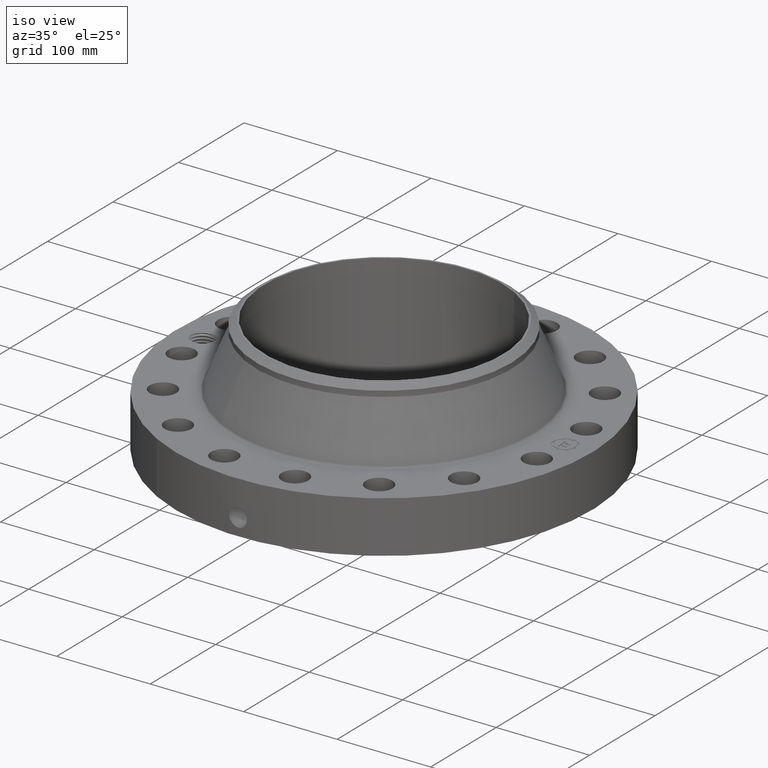
[diagram: clean part render]
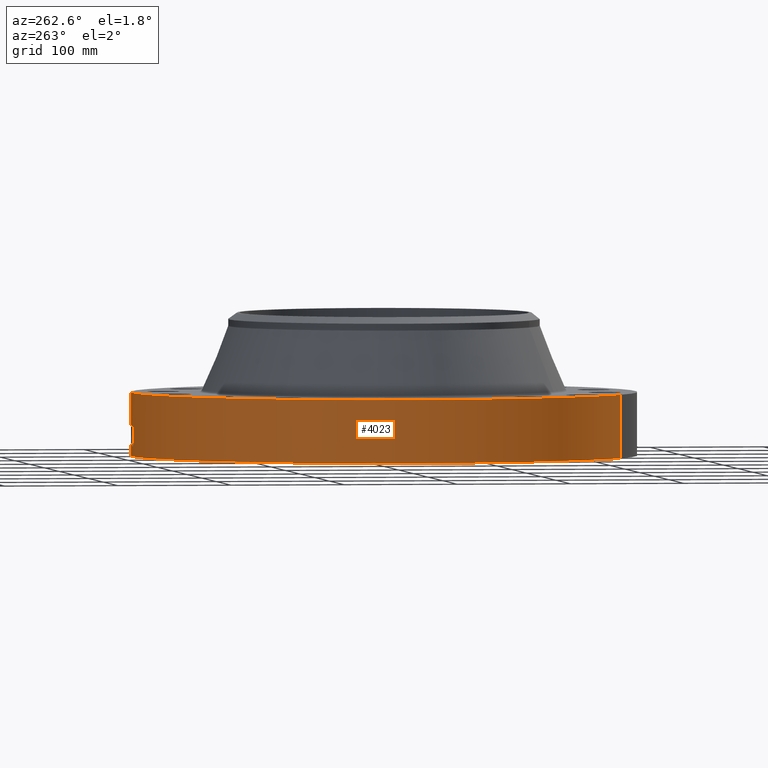
[diagram: tour spotlight — one face highlighted and labeled with its STEP entity id]
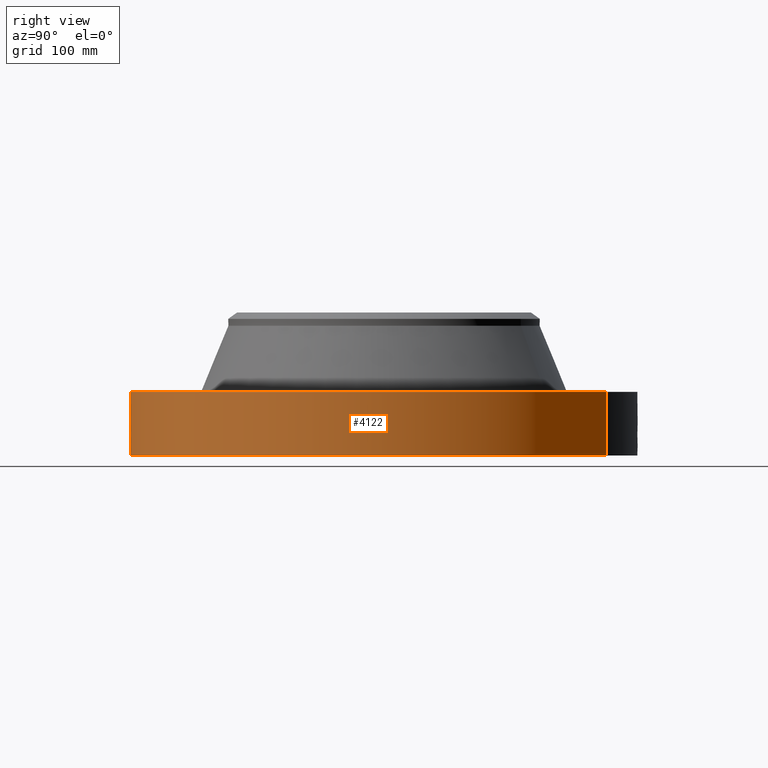
[diagram: tour spotlight — one face highlighted and labeled with its STEP entity id]
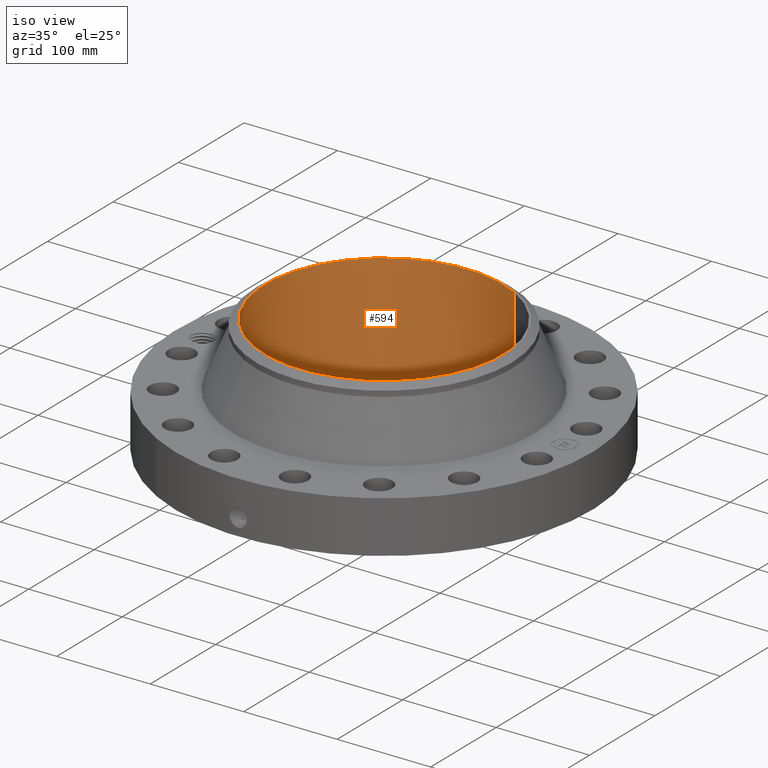
[diagram: tour spotlight — one face highlighted and labeled with its STEP entity id]
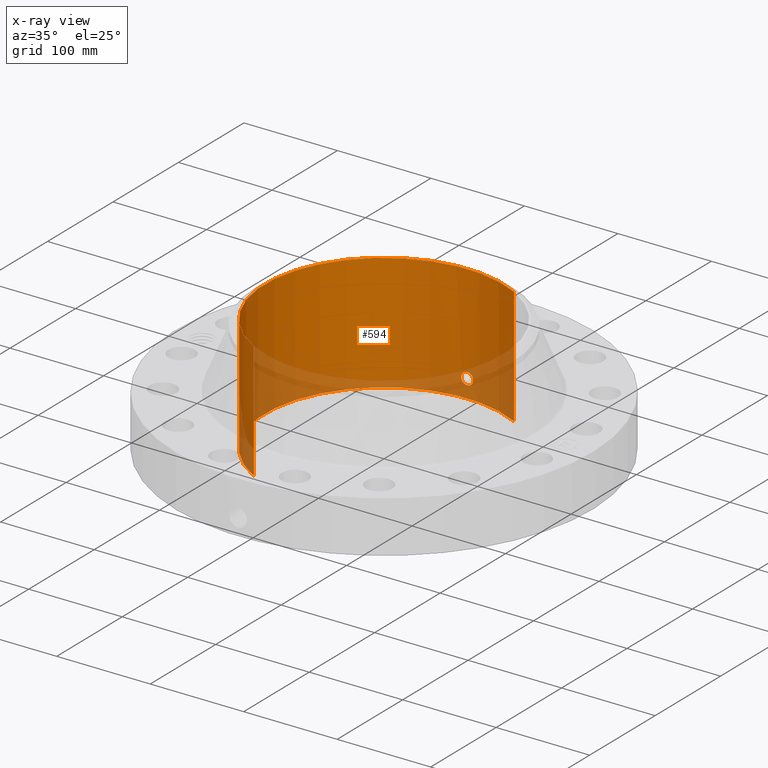
[diagram: x-ray of the same camera — body ghosted, this tour face saturated]
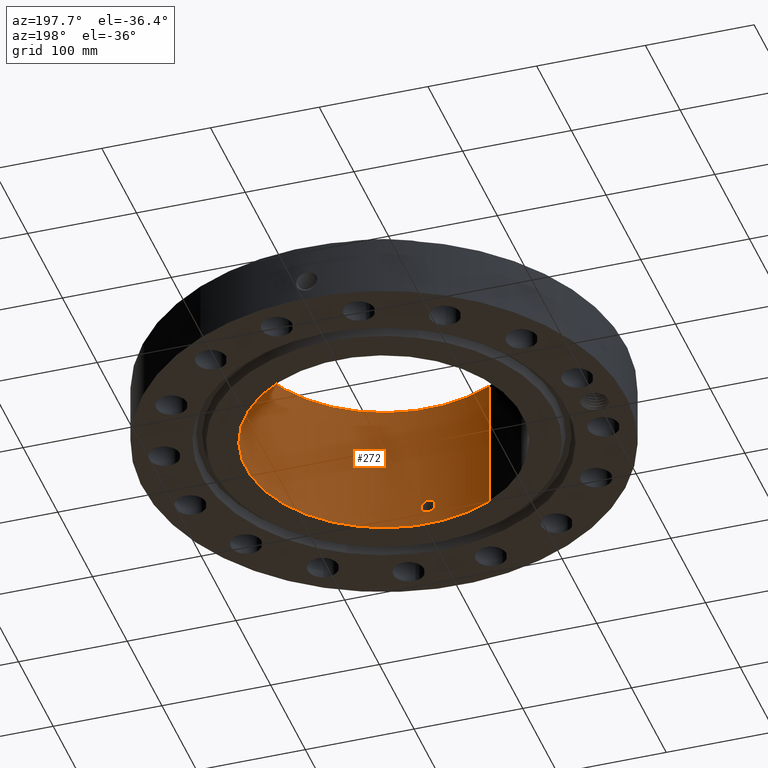
[diagram: tour spotlight — one face highlighted and labeled with its STEP entity id]
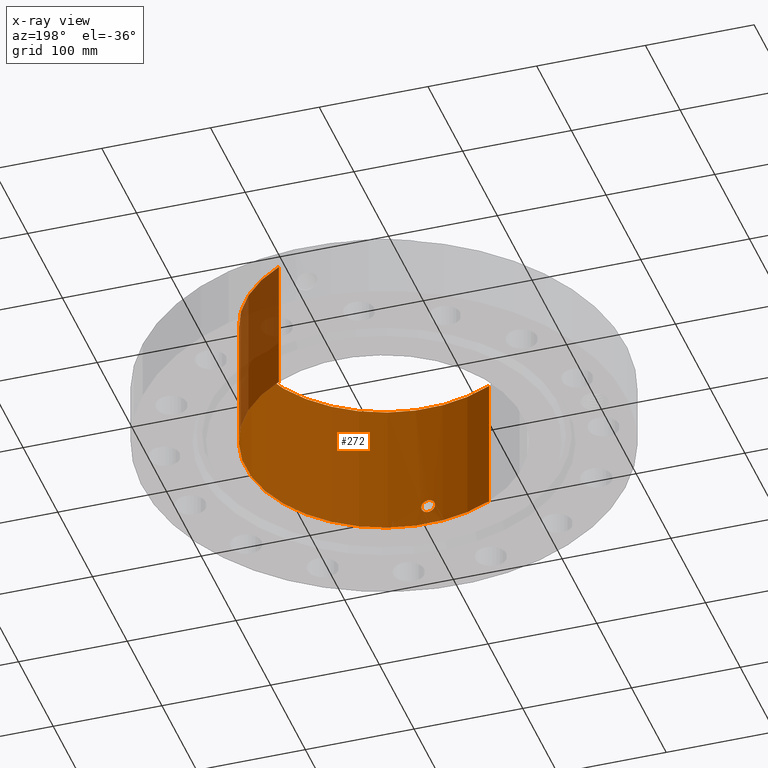
[diagram: x-ray of the same camera — body ghosted, this tour face saturated]
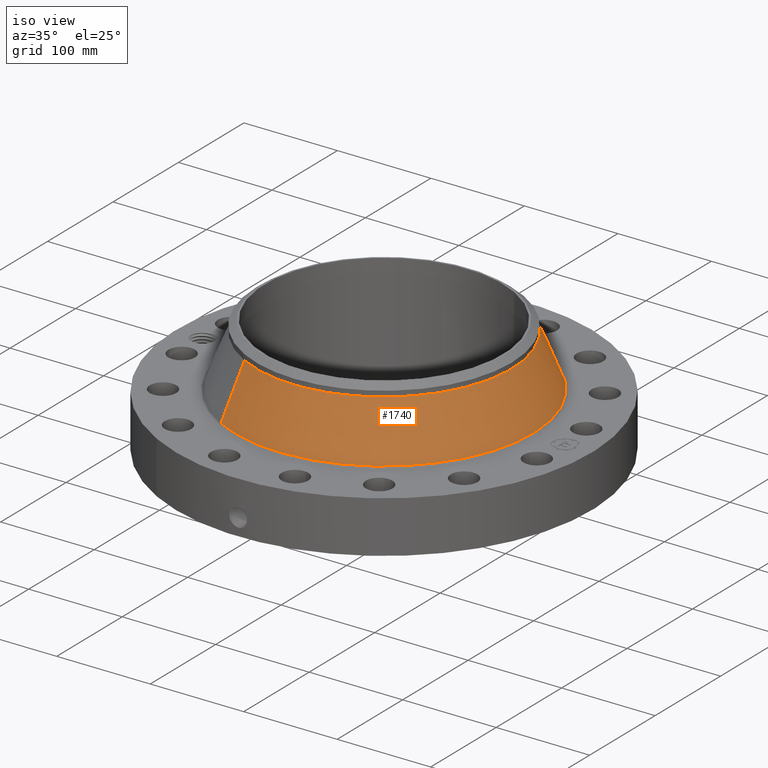
[diagram: tour spotlight — one face highlighted and labeled with its STEP entity id]
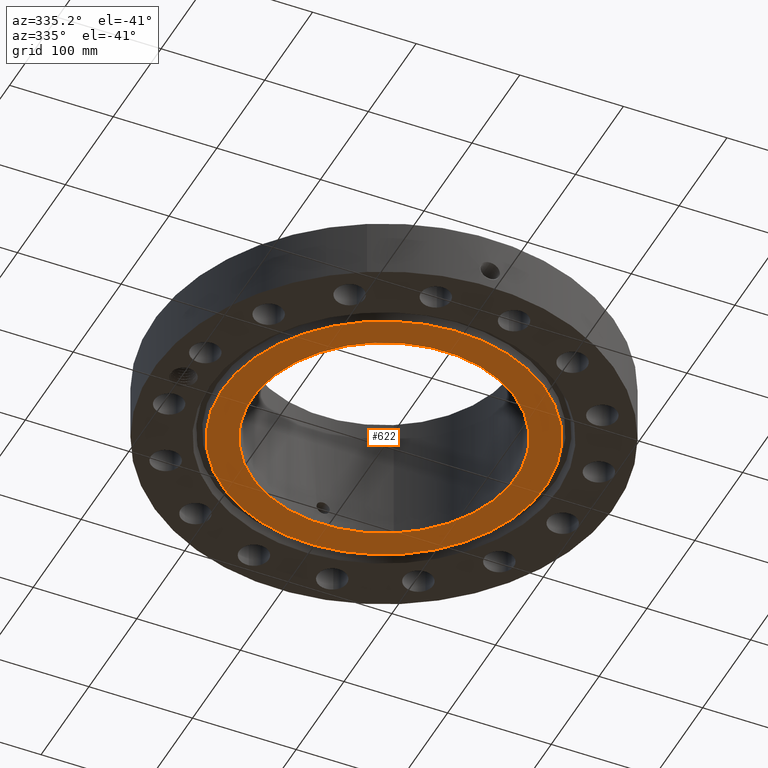
[diagram: tour spotlight — one face highlighted and labeled with its STEP entity id]
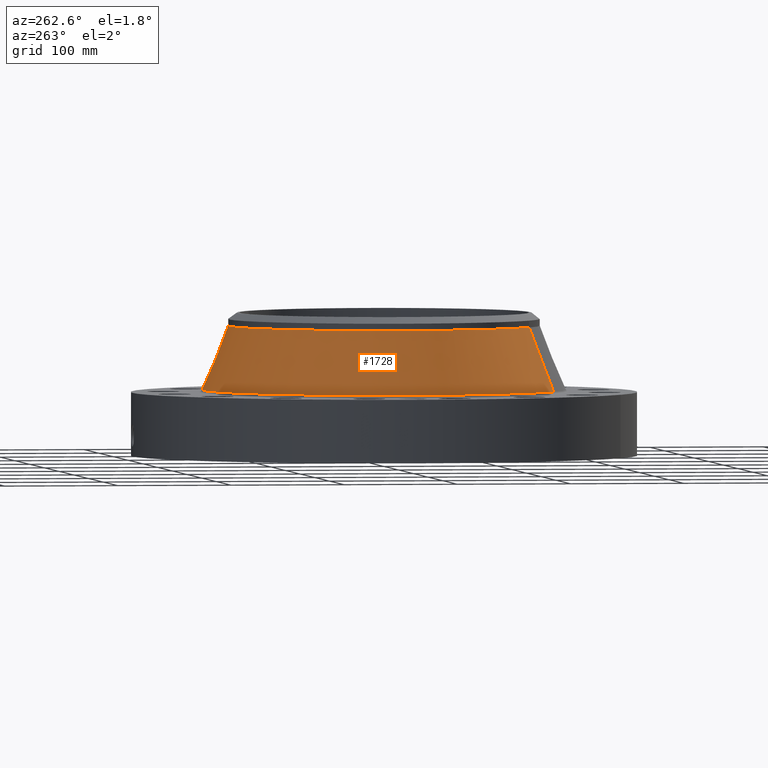
[diagram: tour spotlight — one face highlighted and labeled with its STEP entity id]
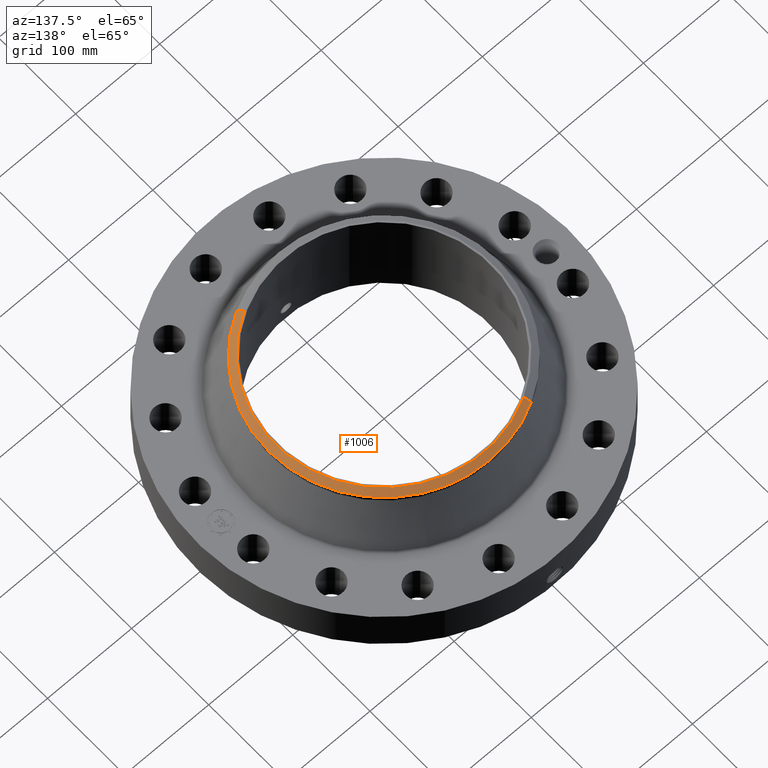
[diagram: tour spotlight — one face highlighted and labeled with its STEP entity id]
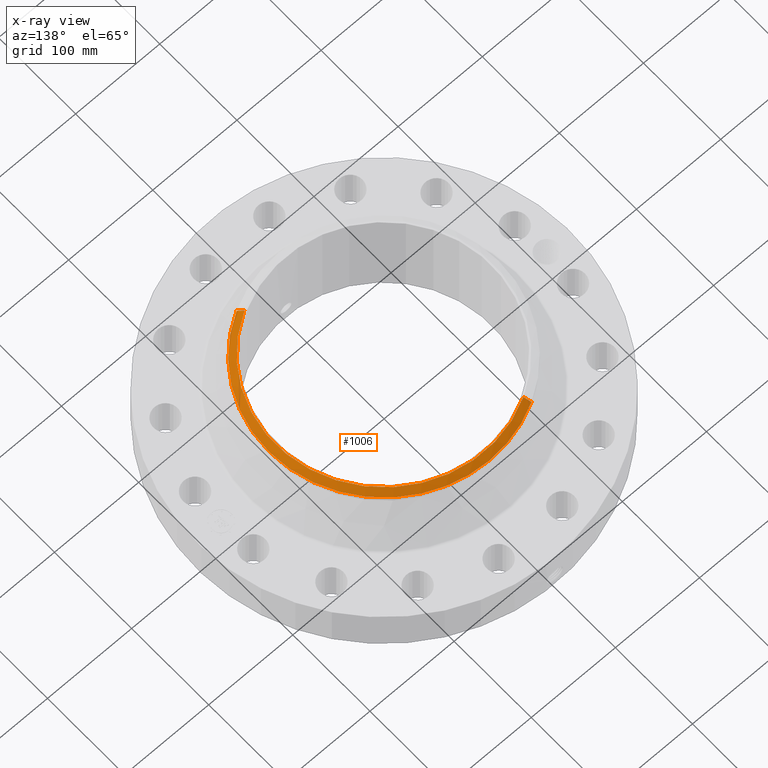
[diagram: x-ray of the same camera — body ghosted, this tour face saturated]
A machine part: a face-by-face anatomy tour. The part has 809 B-rep faces; the first image is the clean iso view, then the 8 largest visible faces are spotlighted one at a time (largest first), each with its STEP entity span.

Face 1 — auxiliary view, entity #4023. In plain terms, the highlighted cylindrical surface (partial cylindrical patch) has radius 222.25 mm, axis along (0, 0, -1).
Definition (entity closure, byte-faithful):
#2927=AXIS2_PLACEMENT_3D('Circle Axis2P3D',#2925,#2926,$) ;
#3909=AXIS2_PLACEMENT_3D('Cylinder Axis2P3D',#3906,#3907,#3908) ;
#3913=AXIS2_PLACEMENT_3D('Circle Axis2P3D',#3911,#3912,$) ;
#2920=CARTESIAN_POINT('Vertex',(4.1949734628,7.67884741657,2.19300000001)) ;
#2922=CARTESIAN_POINT('Vertex',(-4.1949734628,-7.67884741657,2.19300000001)) ;
#2925=CARTESIAN_POINT('Axis2P3D Location',(0.,0.,2.19300000001)) ;
#3906=CARTESIAN_POINT('Axis2P3D Location',(0.,0.,2.46650000001)) ;
#3911=CARTESIAN_POINT('Axis2P3D Location',(0.,0.,8.39223703654E-016)) ;
#3915=CARTESIAN_POINT('Vertex',(-4.1949734628,-7.67884741657,5.59482469102E-016)) ;
#3917=CARTESIAN_POINT('Vertex',(4.1949734628,7.67884741657,5.59482469102E-016)) ;
#3920=CARTESIAN_POINT('Line Origine',(-4.1949734628,-7.67884741657,1.0965)) ;
#3925=CARTESIAN_POINT('Line Origine',(4.1949734628,7.67884741657,1.0965)) ;
#3937=CARTESIAN_POINT('Control Point',(-0.0581082113451,8.74980705138,1.09931275918)) ;
#3938=CARTESIAN_POINT('Control Point',(-0.0391507428816,8.74993294954,1.10247040508)) ;
#3939=CARTESIAN_POINT('Control Point',(-0.019935137787,8.7499983976,1.10407954749)) ;
#3940=CARTESIAN_POINT('Control Point',(-0.000716211241971,8.74999997072,1.10411849893)) ;
#3941=CARTESIAN_POINT('Vertex',(-0.058094103343,8.74980740847,1.09931539446)) ;
#3943=CARTESIAN_POINT('Vertex',(-0.000716087015016,8.74999997073,1.10411850938)) ;
#3947=CARTESIAN_POINT('Control Point',(-0.0580939951518,8.74980714578,1.09931480802)) ;
#3948=CARTESIAN_POINT('Control Point',(-0.0974875527277,8.74954559383,1.09448302669)) ;
#3949=CARTESIAN_POINT('Control Point',(-0.136129795783,8.74901297423,1.08246986474)) ;
#3950=CARTESIAN_POINT('Control Point',(-0.171610206376,8.74831697744,1.06416185771)) ;
#3951=CARTESIAN_POINT('Vertex',(-0.171610206376,8.74831697744,1.06416185771)) ;
#3955=CARTESIAN_POINT('Control Point',(-0.0302669250486,8.74994765206,0.341133857002)) ;
#3956=CARTESIAN_POINT('Control Point',(-0.0865126194301,8.7497530927,0.34828620824)) ;
#3957=CARTESIAN_POINT('Control Point',(-0.141163769291,8.74911210118,0.365899658824)) ;
#3958=CARTESIAN_POINT('Control Point',(-0.191479456609,8.74808366168,0.393467512366)) ;
#3959=CARTESIAN_POINT('Control Point',(-0.264585195573,8.74612690955,0.452883889315)) ;
#3960=CARTESIAN_POINT('Control Point',(-0.316528462515,8.74430507499,0.529208859621)) ;
#3961=CARTESIAN_POINT('Control Point',(-0.333583700506,8.74365536444,0.56188081283)) ;
#3962=CARTESIAN_POINT('Control Point',(-0.368975035581,8.7422470228,0.65403526628)) ;
#3963=CARTESIAN_POINT('Control Point',(-0.375098719303,8.74194353704,0.752677612374)) ;
#3964=CARTESIAN_POINT('Control Point',(-0.366946086311,8.74231502189,0.814326508972)) ;
#3965=CARTESIAN_POINT('Control Point',(-0.333642995797,8.74374181876,0.912287176438)) ;
#3966=CARTESIAN_POINT('Control Point',(-0.270966480153,8.74586349126,0.992724215525)) ;
#3967=CARTESIAN_POINT('Control Point',(-0.24123137955,8.74676440465,1.02147019828)) ;
#3968=CARTESIAN_POINT('Control Point',(-0.207766159006,8.74760772896,1.04550526855)) ;
#3969=CARTESIAN_POINT('Control Point',(-0.171610206376,8.74831697744,1.06416185771)) ;
#3970=CARTESIAN_POINT('Vertex',(-0.0302669250486,8.74994765206,0.341133857002)) ;
#3974=CARTESIAN_POINT('Control Point',(-0.0302669250486,8.74994765206,0.341133857002)) ;
#3975=CARTESIAN_POINT('Control Point',(-0.0201721120829,8.74998257101,0.340866678134)) ;
#3976=CARTESIAN_POINT('Control Point',(-0.0100722667832,8.75000000318,0.340947102439)) ;
#3977=CARTESIAN_POINT('Control Point',(2.72878355316E-006,8.75000000003,0.341374667804)) ;
#3978=CARTESIAN_POINT('Vertex',(2.72878353736E-006,8.75000000003,0.341374667804)) ;
#3982=CARTESIAN_POINT('Control Point',(0.19328241765,8.74786499139,0.39620888473)) ;
#3983=CARTESIAN_POINT('Control Point',(0.149259962967,8.74883765918,0.371336697881)) ;
#3984=CARTESIAN_POINT('Control Point',(0.101168996965,8.74960564166,0.353535751557)) ;
#3985=CARTESIAN_POINT('Control Point',(0.0508246752609,8.74999998419,0.34353146512)) ;
#3986=CARTESIAN_POINT('Control Point',(2.72878350652E-006,8.75000000003,0.341374667805)) ;
#3987=CARTESIAN_POINT('Vertex',(0.19328241765,8.74786499139,0.39620888473)) ;
#3991=CARTESIAN_POINT('Control Point',(0.19328241765,8.74786499139,0.39620888473)) ;
#3992=CARTESIAN_POINT('Control Point',(0.222320013082,8.74722341123,0.41261479561)) ;
#3993=CARTESIAN_POINT('Control Point',(0.24970283303,8.74649785024,0.431904366718)) ;
#3994=CARTESIAN_POINT('Control Point',(0.275025863035,8.74572454017,0.453907776928)) ;
#3995=CARTESIAN_POINT('Control Point',(0.341959797275,8.74345929158,0.525550661267)) ;
#3996=CARTESIAN_POINT('Control Point',(0.384721449475,8.7415800014,0.615221601526)) ;
#3997=CARTESIAN_POINT('Control Point',(0.399824067785,8.74084549811,0.679596595891)) ;
#3998=CARTESIAN_POINT('Control Point',(0.40074125106,8.74084616897,0.793900913675)) ;
#3999=CARTESIAN_POINT('Control Point',(0.360682759963,8.74259093656,0.898628588562)) ;
#4000=CARTESIAN_POINT('Control Point',(0.336434934745,8.74359787649,0.940095914418)) ;
#4001=CARTESIAN_POINT('Control Point',(0.267541262061,8.74613174516,1.02398894546)) ;
#4002=CARTESIAN_POINT('Control Point',(0.174601905303,8.74851033423,1.07870829017)) ;
#4003=CARTESIAN_POINT('Control Point',(0.117427757642,8.74951483366,1.09858358612)) ;
#4004=CARTESIAN_POINT('Control Point',(0.0582716037239,8.75000017228,1.10701111984)) ;
#4005=CARTESIAN_POINT('Control Point',(-2.58579355566E-005,8.75,1.10415298432)) ;
#4006=CARTESIAN_POINT('Vertex',(-2.58579355373E-005,8.75,1.10415298432)) ;
#4010=CARTESIAN_POINT('Control Point',(-0.000716087004832,8.74999997073,1.10411850936)) ;
#4011=CARTESIAN_POINT('Control Point',(-0.000370996506643,8.74999999898,1.1041360633)) ;
#4012=CARTESIAN_POINT('Control Point',(-2.58579413376E-005,8.75,1.10415298432)) ;
#2926=DIRECTION('Axis2P3D Direction',(0.,0.,-0.0393700787402)) ;
#3907=DIRECTION('Axis2P3D Direction',(0.,0.,-0.0393700787402)) ;
#3908=DIRECTION('Axis2P3D XDirection',(0.0188750212049,0.0345504945626,0.)) ;
#3912=DIRECTION('Axis2P3D Direction',(0.,0.,-0.0393700787402)) ;
#3921=DIRECTION('Vector Direction',(0.,0.,-0.0393700787402)) ;
#3926=DIRECTION('Vector Direction',(0.,0.,-0.0393700787402)) ;
#3922=VECTOR('Line Direction',#3921,0.0393700787402) ;
#3927=VECTOR('Line Direction',#3926,0.0393700787402) ;
#3931=ORIENTED_EDGE('',*,*,#3919,.F.) ;
#3932=ORIENTED_EDGE('',*,*,#3924,.T.) ;
#3933=ORIENTED_EDGE('',*,*,#2929,.T.) ;
#3934=ORIENTED_EDGE('',*,*,#3929,.F.) ;
#4015=ORIENTED_EDGE('',*,*,#3945,.F.) ;
#4016=ORIENTED_EDGE('',*,*,#3953,.T.) ;
#4017=ORIENTED_EDGE('',*,*,#3972,.F.) ;
#4018=ORIENTED_EDGE('',*,*,#3980,.T.) ;
#4019=ORIENTED_EDGE('',*,*,#3989,.F.) ;
#4020=ORIENTED_EDGE('',*,*,#4008,.T.) ;
#4021=ORIENTED_EDGE('',*,*,#4013,.F.) ;
#4022=FACE_BOUND('',#4014,.T.) ;
#4023=ADVANCED_FACE('PartBody',(#3935,#4022),#3910,.T.) ;
#3936=B_SPLINE_CURVE_WITH_KNOTS('',3,(#3937,#3938,#3939,#3940),.UNSPECIFIED.,.F.,.U.,(4,4),(4.38919203659,6.52135752019),.UNSPECIFIED.) ;
#3946=B_SPLINE_CURVE_WITH_KNOTS('',3,(#3947,#3948,#3949,#3950),.UNSPECIFIED.,.F.,.U.,(4,4),(0.,4.4594518444),.UNSPECIFIED.) ;
#3954=B_SPLINE_CURVE_WITH_KNOTS('',5,(#3955,#3956,#3957,#3958,#3959,#3960,#3961,#3962,#3963,#3964,#3965,#3966,#3967,#3968,#3969),.UNSPECIFIED.,.F.,.U.,(6,3,3,3,6),(0.,9.85389436206,16.4310832864,27.594165797,35.1680977865),.UNSPECIFIED.) ;
#3973=B_SPLINE_CURVE_WITH_KNOTS('',3,(#3974,#3975,#3976,#3977),.UNSPECIFIED.,.F.,.U.,(4,4),(0.,1.05295486204),.UNSPECIFIED.) ;
#3981=B_SPLINE_CURVE_WITH_KNOTS('',4,(#3982,#3983,#3984,#3985,#3986),.UNSPECIFIED.,.F.,.U.,(5,5),(0.,7.08198369672),.UNSPECIFIED.) ;
#3990=B_SPLINE_CURVE_WITH_KNOTS('',5,(#3991,#3992,#3993,#3994,#3995,#3996,#3997,#3998,#3999,#4000,#4001,#4002,#4003,#4004,#4005),.UNSPECIFIED.,.F.,.U.,(6,3,3,3,6),(0.,5.83917277881,17.1007667584,25.5637802442,36.4607847134),.UNSPECIFIED.) ;
#4009=B_SPLINE_CURVE_WITH_KNOTS('',2,(#4010,#4011,#4012),.UNSPECIFIED.,.F.,.U.,(3,3),(1.04630914316,1.07211456638),.UNSPECIFIED.) ;
#2928=CIRCLE('generated circle',#2927,8.75000000003) ;
#3914=CIRCLE('generated circle',#3913,8.75000000003) ;
#3910=CYLINDRICAL_SURFACE('generated cylinder',#3909,8.75000000003) ;
#2929=EDGE_CURVE('',#2923,#2921,#2928,.T.) ;
#3919=EDGE_CURVE('',#3916,#3918,#3914,.T.) ;
#3924=EDGE_CURVE('',#3916,#2923,#3923,.F.) ;
#3929=EDGE_CURVE('',#3918,#2921,#3928,.F.) ;
#3945=EDGE_CURVE('',#3942,#3944,#3936,.T.) ;
#3953=EDGE_CURVE('',#3942,#3952,#3946,.T.) ;
#3972=EDGE_CURVE('',#3971,#3952,#3954,.T.) ;
#3980=EDGE_CURVE('',#3971,#3979,#3973,.T.) ;
#3989=EDGE_CURVE('',#3988,#3979,#3981,.T.) ;
#4008=EDGE_CURVE('',#3988,#4007,#3990,.T.) ;
#4013=EDGE_CURVE('',#3944,#4007,#4009,.T.) ;
#3930=EDGE_LOOP('',(#3931,#3932,#3933,#3934)) ;
#4014=EDGE_LOOP('',(#4015,#4016,#4017,#4018,#4019,#4020,#4021)) ;
#3935=FACE_OUTER_BOUND('',#3930,.T.) ;
#3923=LINE('Line',#3920,#3922) ;
#3928=LINE('Line',#3925,#3927) ;
#2921=VERTEX_POINT('',#2920) ;
#2923=VERTEX_POINT('',#2922) ;
#3916=VERTEX_POINT('',#3915) ;
#3918=VERTEX_POINT('',#3917) ;
#3942=VERTEX_POINT('',#3941) ;
#3944=VERTEX_POINT('',#3943) ;
#3952=VERTEX_POINT('',#3951) ;
#3971=VERTEX_POINT('',#3970) ;
#3979=VERTEX_POINT('',#3978) ;
#3988=VERTEX_POINT('',#3987) ;
#4007=VERTEX_POINT('',#4006) ;

Face 2 — right view, entity #4122. In plain terms, the highlighted cylindrical surface (partial cylindrical patch) has radius 222.25 mm, axis along (0, 0, -1).
Definition (entity closure, byte-faithful):
#2918=AXIS2_PLACEMENT_3D('Circle Axis2P3D',#2916,#2917,$) ;
#3909=AXIS2_PLACEMENT_3D('Cylinder Axis2P3D',#3906,#3907,#3908) ;
#4026=AXIS2_PLACEMENT_3D('Circle Axis2P3D',#4024,#4025,$) ;
#2916=CARTESIAN_POINT('Axis2P3D Location',(0.,0.,2.19300000001)) ;
#2920=CARTESIAN_POINT('Vertex',(4.1949734628,7.67884741657,2.19300000001)) ;
#2922=CARTESIAN_POINT('Vertex',(-4.1949734628,-7.67884741657,2.19300000001)) ;
#3906=CARTESIAN_POINT('Axis2P3D Location',(0.,0.,2.46650000001)) ;
#3915=CARTESIAN_POINT('Vertex',(-4.1949734628,-7.67884741657,5.59482469102E-016)) ;
#3917=CARTESIAN_POINT('Vertex',(4.1949734628,7.67884741657,5.59482469102E-016)) ;
#3920=CARTESIAN_POINT('Line Origine',(-4.1949734628,-7.67884741657,1.0965)) ;
#3925=CARTESIAN_POINT('Line Origine',(4.1949734628,7.67884741657,1.0965)) ;
#4024=CARTESIAN_POINT('Axis2P3D Location',(0.,0.,8.39223703654E-016)) ;
#4036=CARTESIAN_POINT('Control Point',(0.0581082113383,-8.74980705138,1.09931275918)) ;
#4037=CARTESIAN_POINT('Control Point',(0.0391507428739,-8.74993294954,1.10247040508)) ;
#4038=CARTESIAN_POINT('Control Point',(0.0199351377813,-8.7499983976,1.10407954749)) ;
#4039=CARTESIAN_POINT('Control Point',(0.000716211241799,-8.74999997072,1.10411849893)) ;
#4040=CARTESIAN_POINT('Vertex',(0.058094103343,-8.74980740847,1.09931539446)) ;
#4042=CARTESIAN_POINT('Vertex',(0.000716087015019,-8.74999997073,1.10411850938)) ;
#4046=CARTESIAN_POINT('Control Point',(0.0580939951518,-8.74980714578,1.09931480802)) ;
#4047=CARTESIAN_POINT('Control Point',(0.0974875527316,-8.74954559383,1.09448302669)) ;
#4048=CARTESIAN_POINT('Control Point',(0.13612979578,-8.74901297423,1.08246986474)) ;
#4049=CARTESIAN_POINT('Control Point',(0.171610206376,-8.74831697744,1.06416185771)) ;
#4050=CARTESIAN_POINT('Vertex',(0.171610206376,-8.74831697744,1.06416185771)) ;
#4054=CARTESIAN_POINT('Control Point',(0.0302669250486,-8.74994765206,0.341133857002)) ;
#4055=CARTESIAN_POINT('Control Point',(0.0865126193993,-8.7497530927,0.348286208236)) ;
#4056=CARTESIAN_POINT('Control Point',(0.141163769232,-8.74911210118,0.365899658805)) ;
#4057=CARTESIAN_POINT('Control Point',(0.191479456581,-8.74808366168,0.393467512356)) ;
#4058=CARTESIAN_POINT('Control Point',(0.264585195547,-8.74612690955,0.45288388929)) ;
#4059=CARTESIAN_POINT('Control Point',(0.316528462496,-8.74430507499,0.529208859582)) ;
#4060=CARTESIAN_POINT('Control Point',(0.333583700452,-8.74365536444,0.561880812708)) ;
#4061=CARTESIAN_POINT('Control Point',(0.368975035558,-8.7422470228,0.654035266158)) ;
#4062=CARTESIAN_POINT('Control Point',(0.375098719307,-8.74194353704,0.75267761226)) ;
#4063=CARTESIAN_POINT('Control Point',(0.36694608632,-8.74231502189,0.814326508907)) ;
#4064=CARTESIAN_POINT('Control Point',(0.333642995823,-8.74374181876,0.912287176393)) ;
#4065=CARTESIAN_POINT('Control Point',(0.270966480181,-8.74586349126,0.9927242155)) ;
#4066=CARTESIAN_POINT('Control Point',(0.241231379592,-8.74676440465,1.02147019826)) ;
#4067=CARTESIAN_POINT('Control Point',(0.207766159028,-8.74760772896,1.04550526854)) ;
#4068=CARTESIAN_POINT('Control Point',(0.171610206376,-8.74831697744,1.06416185771)) ;
#4069=CARTESIAN_POINT('Vertex',(0.0302669250486,-8.74994765206,0.341133857002)) ;
#4073=CARTESIAN_POINT('Control Point',(0.0302669250486,-8.74994765206,0.341133857002)) ;
#4074=CARTESIAN_POINT('Control Point',(0.0201721120829,-8.74998257101,0.340866678134)) ;
#4075=CARTESIAN_POINT('Control Point',(0.0100722667832,-8.75000000318,0.340947102439)) ;
#4076=CARTESIAN_POINT('Control Point',(-2.72878353091E-006,-8.75000000003,0.341374667804)) ;
#4077=CARTESIAN_POINT('Vertex',(-2.72878353845E-006,-8.75000000003,0.341374667804)) ;
#4081=CARTESIAN_POINT('Control Point',(-0.19328241765,-8.74786499139,0.39620888473)) ;
#4082=CARTESIAN_POINT('Control Point',(-0.149259962972,-8.74883765918,0.371336697884)) ;
#4083=CARTESIAN_POINT('Control Point',(-0.101168996964,-8.74960564166,0.353535751558)) ;
#4084=CARTESIAN_POINT('Control Point',(-0.050824675255,-8.74999998419,0.34353146512)) ;
#4085=CARTESIAN_POINT('Control Point',(-2.72878353091E-006,-8.75000000003,0.341374667805)) ;
#4086=CARTESIAN_POINT('Vertex',(-0.19328241765,-8.74786499139,0.39620888473)) ;
#4090=CARTESIAN_POINT('Control Point',(-0.19328241765,-8.74786499139,0.39620888473)) ;
#4091=CARTESIAN_POINT('Control Point',(-0.222320013064,-8.74722341123,0.4126147956)) ;
#4092=CARTESIAN_POINT('Control Point',(-0.249702832997,-8.74649785024,0.431904366694)) ;
#4093=CARTESIAN_POINT('Control Point',(-0.275025862896,-8.74572454017,0.4539077768)) ;
#4094=CARTESIAN_POINT('Control Point',(-0.341959797191,-8.74345929159,0.525550661125)) ;
#4095=CARTESIAN_POINT('Control Point',(-0.384721449446,-8.7415800014,0.615221601393)) ;
#4096=CARTESIAN_POINT('Control Point',(-0.399824067751,-8.74084549811,0.679596595568)) ;
#4097=CARTESIAN_POINT('Control Point',(-0.400741251115,-8.74084616896,0.793900913398)) ;
#4098=CARTESIAN_POINT('Control Point',(-0.360682760066,-8.74259093656,0.898628588351)) ;
#4099=CARTESIAN_POINT('Control Point',(-0.336434934861,-8.74359787649,0.940095914243)) ;
#4100=CARTESIAN_POINT('Control Point',(-0.267541262195,-8.74613174515,1.02398894535)) ;
#4101=CARTESIAN_POINT('Control Point',(-0.174601905421,-8.74851033423,1.07870829013)) ;
#4102=CARTESIAN_POINT('Control Point',(-0.11742775774,-8.74951483366,1.09858358611)) ;
#4103=CARTESIAN_POINT('Control Point',(-0.0582716037716,-8.75000017228,1.10701111984)) ;
#4104=CARTESIAN_POINT('Control Point',(2.58579355322E-005,-8.75,1.10415298432)) ;
#4105=CARTESIAN_POINT('Vertex',(2.58579355363E-005,-8.75,1.10415298432)) ;
#4109=CARTESIAN_POINT('Control Point',(0.000716087004843,-8.74999997073,1.10411850936)) ;
#4110=CARTESIAN_POINT('Control Point',(0.000370996506661,-8.74999999898,1.1041360633)) ;
#4111=CARTESIAN_POINT('Control Point',(2.58579413629E-005,-8.75,1.10415298432)) ;
#2917=DIRECTION('Axis2P3D Direction',(0.,0.,-0.0393700787402)) ;
#3907=DIRECTION('Axis2P3D Direction',(0.,0.,-0.0393700787402)) ;
#3908=DIRECTION('Axis2P3D XDirection',(0.0188750212049,0.0345504945626,0.)) ;
#3921=DIRECTION('Vector Direction',(0.,0.,-0.0393700787402)) ;
#3926=DIRECTION('Vector Direction',(0.,0.,-0.0393700787402)) ;
#4025=DIRECTION('Axis2P3D Direction',(0.,0.,-0.0393700787402)) ;
#3922=VECTOR('Line Direction',#3921,0.0393700787402) ;
#3927=VECTOR('Line Direction',#3926,0.0393700787402) ;
#4030=ORIENTED_EDGE('',*,*,#4028,.F.) ;
#4031=ORIENTED_EDGE('',*,*,#3929,.T.) ;
#4032=ORIENTED_EDGE('',*,*,#2924,.T.) ;
#4033=ORIENTED_EDGE('',*,*,#3924,.F.) ;
#4114=ORIENTED_EDGE('',*,*,#4044,.F.) ;
#4115=ORIENTED_EDGE('',*,*,#4052,.T.) ;
#4116=ORIENTED_EDGE('',*,*,#4071,.F.) ;
#4117=ORIENTED_EDGE('',*,*,#4079,.T.) ;
#4118=ORIENTED_EDGE('',*,*,#4088,.F.) ;
#4119=ORIENTED_EDGE('',*,*,#4107,.T.) ;
#4120=ORIENTED_EDGE('',*,*,#4112,.F.) ;
#4121=FACE_BOUND('',#4113,.T.) ;
#4122=ADVANCED_FACE('PartBody',(#4034,#4121),#3910,.T.) ;
#4035=B_SPLINE_CURVE_WITH_KNOTS('',3,(#4036,#4037,#4038,#4039),.UNSPECIFIED.,.F.,.U.,(4,4),(4.38919203569,6.52135751858),.UNSPECIFIED.) ;
#4045=B_SPLINE_CURVE_WITH_KNOTS('',3,(#4046,#4047,#4048,#4049),.UNSPECIFIED.,.F.,.U.,(4,4),(0.,4.45945184484),.UNSPECIFIED.) ;
#4053=B_SPLINE_CURVE_WITH_KNOTS('',5,(#4054,#4055,#4056,#4057,#4058,#4059,#4060,#4061,#4062,#4063,#4064,#4065,#4066,#4067,#4068),.UNSPECIFIED.,.F.,.U.,(6,3,3,3,6),(0.,9.85389435666,16.431083285,27.5941657932,35.1680977875),.UNSPECIFIED.) ;
#4072=B_SPLINE_CURVE_WITH_KNOTS('',3,(#4073,#4074,#4075,#4076),.UNSPECIFIED.,.F.,.U.,(4,4),(0.,1.05295486204),.UNSPECIFIED.) ;
#4080=B_SPLINE_CURVE_WITH_KNOTS('',4,(#4081,#4082,#4083,#4084,#4085),.UNSPECIFIED.,.F.,.U.,(5,5),(0.,7.08198369591),.UNSPECIFIED.) ;
#4089=B_SPLINE_CURVE_WITH_KNOTS('',5,(#4090,#4091,#4092,#4093,#4094,#4095,#4096,#4097,#4098,#4099,#4100,#4101,#4102,#4103,#4104),.UNSPECIFIED.,.F.,.U.,(6,3,3,3,6),(0.,5.8391727752,17.1007667634,25.5637802479,36.4607847259),.UNSPECIFIED.) ;
#4108=B_SPLINE_CURVE_WITH_KNOTS('',2,(#4109,#4110,#4111),.UNSPECIFIED.,.F.,.U.,(3,3),(1.04630914316,1.07211456638),.UNSPECIFIED.) ;
#2919=CIRCLE('generated circle',#2918,8.75000000003) ;
#4027=CIRCLE('generated circle',#4026,8.75000000003) ;
#3910=CYLINDRICAL_SURFACE('generated cylinder',#3909,8.75000000003) ;
#2924=EDGE_CURVE('',#2921,#2923,#2919,.T.) ;
#3924=EDGE_CURVE('',#3916,#2923,#3923,.F.) ;
#3929=EDGE_CURVE('',#3918,#2921,#3928,.F.) ;
#4028=EDGE_CURVE('',#3918,#3916,#4027,.T.) ;
#4044=EDGE_CURVE('',#4041,#4043,#4035,.T.) ;
#4052=EDGE_CURVE('',#4041,#4051,#4045,.T.) ;
#4071=EDGE_CURVE('',#4070,#4051,#4053,.T.) ;
#4079=EDGE_CURVE('',#4070,#4078,#4072,.T.) ;
#4088=EDGE_CURVE('',#4087,#4078,#4080,.T.) ;
#4107=EDGE_CURVE('',#4087,#4106,#4089,.T.) ;
#4112=EDGE_CURVE('',#4043,#4106,#4108,.T.) ;
#4029=EDGE_LOOP('',(#4030,#4031,#4032,#4033)) ;
#4113=EDGE_LOOP('',(#4114,#4115,#4116,#4117,#4118,#4119,#4120)) ;
#4034=FACE_OUTER_BOUND('',#4029,.T.) ;
#3923=LINE('Line',#3920,#3922) ;
#3928=LINE('Line',#3925,#3927) ;
#2921=VERTEX_POINT('',#2920) ;
#2923=VERTEX_POINT('',#2922) ;
#3916=VERTEX_POINT('',#3915) ;
#3918=VERTEX_POINT('',#3917) ;
#4041=VERTEX_POINT('',#4040) ;
#4043=VERTEX_POINT('',#4042) ;
#4051=VERTEX_POINT('',#4050) ;
#4070=VERTEX_POINT('',#4069) ;
#4078=VERTEX_POINT('',#4077) ;
#4087=VERTEX_POINT('',#4086) ;
#4106=VERTEX_POINT('',#4105) ;

Face 3 — iso view, entity #594. An x-ray twin of the same camera follows (body ghosted, this face saturated) — the face is partly hidden behind the body. In plain terms, the highlighted cylindrical surface (partial cylindrical patch) has radius 127.254 mm, axis along (0, 0, -1).
Definition (entity closure, byte-faithful):
#232=AXIS2_PLACEMENT_3D('Cylinder Axis2P3D',#229,#230,#231) ;
#533=AXIS2_PLACEMENT_3D('Circle Axis2P3D',#531,#532,$) ;
#543=AXIS2_PLACEMENT_3D('Circle Axis2P3D',#541,#542,$) ;
#229=CARTESIAN_POINT('Axis2P3D Location',(0.,0.,2.46650000001)) ;
#238=CARTESIAN_POINT('Vertex',(2.40192194842,4.39668863509,4.93300000002)) ;
#240=CARTESIAN_POINT('Vertex',(-2.40192194842,-4.39668863509,4.93300000002)) ;
#243=CARTESIAN_POINT('Line Origine',(2.40192194842,4.39668863509,2.46650000001)) ;
#247=CARTESIAN_POINT('Vertex',(2.40192194842,4.39668863509,-1.17491318512E-014)) ;
#254=CARTESIAN_POINT('Vertex',(-2.40192194842,-4.39668863509,-1.17491318512E-014)) ;
#257=CARTESIAN_POINT('Line Origine',(-2.40192194842,-4.39668863509,2.46650000001)) ;
#531=CARTESIAN_POINT('Axis2P3D Location',(0.,0.,4.93300000002)) ;
#541=CARTESIAN_POINT('Axis2P3D Location',(0.,0.,-1.28680967894E-014)) ;
#553=CARTESIAN_POINT('Control Point',(0.219395640473,5.0051938577,0.869856384655)) ;
#554=CARTESIAN_POINT('Control Point',(0.206921726744,5.00574063418,0.892689730579)) ;
#555=CARTESIAN_POINT('Control Point',(0.191478298875,5.00637864122,0.913898617409)) ;
#556=CARTESIAN_POINT('Control Point',(0.17334531814,5.00705858161,0.932970125788)) ;
#557=CARTESIAN_POINT('Control Point',(0.112137495216,5.00902515689,0.982448443439)) ;
#558=CARTESIAN_POINT('Control Point',(0.0349834941272,5.0103028337,1.00597315605)) ;
#559=CARTESIAN_POINT('Control Point',(-0.0195586093843,5.01039831415,1.00761228098)) ;
#560=CARTESIAN_POINT('Control Point',(-0.124143463831,5.00899203585,0.982470816197)) ;
#561=CARTESIAN_POINT('Control Point',(-0.203188052532,5.00608110487,0.90956136154)) ;
#562=CARTESIAN_POINT('Control Point',(-0.232165482182,5.00464790126,0.863347559974)) ;
#563=CARTESIAN_POINT('Control Point',(-0.255832984993,5.00346793306,0.785190939743)) ;
#564=CARTESIAN_POINT('Control Point',(-0.248296103091,5.00384337312,0.705801483622)) ;
#565=CARTESIAN_POINT('Control Point',(-0.242062009688,5.00415848896,0.67921764512)) ;
#566=CARTESIAN_POINT('Control Point',(-0.232323664129,5.00462717595,0.653808203919)) ;
#567=CARTESIAN_POINT('Control Point',(-0.219395640473,5.0051938577,0.630143615351)) ;
#568=CARTESIAN_POINT('Vertex',(0.219395640473,5.0051938577,0.869856384655)) ;
#570=CARTESIAN_POINT('Vertex',(-0.219395640473,5.0051938577,0.630143615351)) ;
#574=CARTESIAN_POINT('Control Point',(-0.219395640473,5.0051938577,0.630143615351)) ;
#575=CARTESIAN_POINT('Control Point',(-0.206921726744,5.00574063418,0.607310269427)) ;
#576=CARTESIAN_POINT('Control Point',(-0.191478298875,5.00637864122,0.586101382597)) ;
#577=CARTESIAN_POINT('Control Point',(-0.173345318142,5.00705858161,0.56702987422)) ;
#578=CARTESIAN_POINT('Control Point',(-0.112137495222,5.00902515689,0.51755155657)) ;
#579=CARTESIAN_POINT('Control Point',(-0.0349834941378,5.0103028337,0.494026843957)) ;
#580=CARTESIAN_POINT('Control Point',(0.0195586093904,5.01039831415,0.492387719027)) ;
#581=CARTESIAN_POINT('Control Point',(0.124143463845,5.00899203585,0.517529183814)) ;
#582=CARTESIAN_POINT('Control Point',(0.203188052551,5.00608110487,0.590438638482)) ;
#583=CARTESIAN_POINT('Control Point',(0.232165482172,5.00464790126,0.636652440003)) ;
#584=CARTESIAN_POINT('Control Point',(0.255832984994,5.00346793306,0.714809060247)) ;
#585=CARTESIAN_POINT('Control Point',(0.248296103091,5.00384337312,0.794198516382)) ;
#586=CARTESIAN_POINT('Control Point',(0.242062009688,5.00415848896,0.820782354886)) ;
#587=CARTESIAN_POINT('Control Point',(0.232323664129,5.00462717595,0.846191796087)) ;
#588=CARTESIAN_POINT('Control Point',(0.219395640473,5.0051938577,0.869856384655)) ;
#230=DIRECTION('Axis2P3D Direction',(0.,0.,-0.0393700787402)) ;
#231=DIRECTION('Axis2P3D XDirection',(-0.0188750212049,-0.0345504945626,0.)) ;
#244=DIRECTION('Vector Direction',(0.,0.,-0.0393700787402)) ;
#258=DIRECTION('Vector Direction',(0.,0.,-0.0393700787402)) ;
#532=DIRECTION('Axis2P3D Direction',(0.,0.,-0.0393700787402)) ;
#542=DIRECTION('Axis2P3D Direction',(0.,0.,-0.0393700787402)) ;
#245=VECTOR('Line Direction',#244,0.0393700787402) ;
#259=VECTOR('Line Direction',#258,0.0393700787402) ;
#547=ORIENTED_EDGE('',*,*,#535,.F.) ;
#548=ORIENTED_EDGE('',*,*,#261,.T.) ;
#549=ORIENTED_EDGE('',*,*,#545,.T.) ;
#550=ORIENTED_EDGE('',*,*,#249,.F.) ;
#591=ORIENTED_EDGE('',*,*,#572,.F.) ;
#592=ORIENTED_EDGE('',*,*,#589,.F.) ;
#593=FACE_BOUND('',#590,.T.) ;
#594=ADVANCED_FACE('PartBody',(#551,#593),#233,.F.) ;
#552=B_SPLINE_CURVE_WITH_KNOTS('',5,(#553,#554,#555,#556,#557,#558,#559,#560,#561,#562,#563,#564,#565,#566,#567),.UNSPECIFIED.,.F.,.U.,(6,3,3,3,6),(0.,4.67408027813,14.0220982243,23.3720849081,28.2163239907),.UNSPECIFIED.) ;
#573=B_SPLINE_CURVE_WITH_KNOTS('',5,(#574,#575,#576,#577,#578,#579,#580,#581,#582,#583,#584,#585,#586,#587,#588),.UNSPECIFIED.,.F.,.U.,(6,3,3,3,6),(0.,4.67408027814,14.0220982236,23.3720849098,28.2163239925),.UNSPECIFIED.) ;
#534=CIRCLE('generated circle',#533,5.01000000002) ;
#544=CIRCLE('generated circle',#543,5.01000000002) ;
#233=CYLINDRICAL_SURFACE('generated cylinder',#232,5.01000000002) ;
#249=EDGE_CURVE('',#239,#248,#246,.T.) ;
#261=EDGE_CURVE('',#241,#255,#260,.T.) ;
#535=EDGE_CURVE('',#241,#239,#534,.T.) ;
#545=EDGE_CURVE('',#255,#248,#544,.T.) ;
#572=EDGE_CURVE('',#569,#571,#552,.T.) ;
#589=EDGE_CURVE('',#571,#569,#573,.T.) ;
#546=EDGE_LOOP('',(#547,#548,#549,#550)) ;
#590=EDGE_LOOP('',(#591,#592)) ;
#551=FACE_OUTER_BOUND('',#546,.T.) ;
#246=LINE('Line',#243,#245) ;
#260=LINE('Line',#257,#259) ;
#239=VERTEX_POINT('',#238) ;
#241=VERTEX_POINT('',#240) ;
#248=VERTEX_POINT('',#247) ;
#255=VERTEX_POINT('',#254) ;
#569=VERTEX_POINT('',#568) ;
#571=VERTEX_POINT('',#570) ;

Face 4 — auxiliary view, entity #272. An x-ray twin of the same camera follows (body ghosted, this face saturated) — the face is partly hidden behind the body. In plain terms, the highlighted cylindrical surface (partial cylindrical patch) has radius 127.254 mm, axis along (0, 0, -1).
Definition (entity closure, byte-faithful):
#232=AXIS2_PLACEMENT_3D('Cylinder Axis2P3D',#229,#230,#231) ;
#236=AXIS2_PLACEMENT_3D('Circle Axis2P3D',#234,#235,$) ;
#252=AXIS2_PLACEMENT_3D('Circle Axis2P3D',#250,#251,$) ;
#81=CARTESIAN_POINT('Control Point',(0.219395640473,-5.0051938577,0.630143615351)) ;
#82=CARTESIAN_POINT('Control Point',(0.206921726754,-5.00574063418,0.607310269446)) ;
#83=CARTESIAN_POINT('Control Point',(0.191478289818,-5.00637864042,0.586101366106)) ;
#84=CARTESIAN_POINT('Control Point',(0.173345302068,-5.00705858077,0.567029864322)) ;
#85=CARTESIAN_POINT('Control Point',(0.11213752728,-5.00902515857,0.517551576304)) ;
#86=CARTESIAN_POINT('Control Point',(0.0349834299765,-5.01030283035,0.494026804474)) ;
#87=CARTESIAN_POINT('Control Point',(-0.019558675775,-5.01039831727,0.492387754601)) ;
#88=CARTESIAN_POINT('Control Point',(-0.124143397445,-5.00899203273,0.517529148232)) ;
#89=CARTESIAN_POINT('Control Point',(-0.203188118965,-5.006081108,0.590438674072)) ;
#90=CARTESIAN_POINT('Control Point',(-0.232165485174,-5.00464790156,0.636652515391)) ;
#91=CARTESIAN_POINT('Control Point',(-0.255832983442,-5.0034679329,0.714809021201)) ;
#92=CARTESIAN_POINT('Control Point',(-0.248296103895,-5.0038433732,0.794198536641)) ;
#93=CARTESIAN_POINT('Control Point',(-0.24206201945,-5.00415848981,0.820782337115)) ;
#94=CARTESIAN_POINT('Control Point',(-0.232323664134,-5.00462717595,0.846191796077)) ;
#95=CARTESIAN_POINT('Control Point',(-0.219395640473,-5.0051938577,0.869856384655)) ;
#96=CARTESIAN_POINT('Vertex',(0.219395640473,-5.0051938577,0.630143615351)) ;
#98=CARTESIAN_POINT('Vertex',(-0.219395640473,-5.0051938577,0.869856384655)) ;
#206=CARTESIAN_POINT('Control Point',(-0.219395640473,-5.0051938577,0.869856384655)) ;
#207=CARTESIAN_POINT('Control Point',(-0.206921726754,-5.00574063418,0.89268973056)) ;
#208=CARTESIAN_POINT('Control Point',(-0.191478289818,-5.00637864042,0.913898633899)) ;
#209=CARTESIAN_POINT('Control Point',(-0.173345302068,-5.00705858077,0.932970135684)) ;
#210=CARTESIAN_POINT('Control Point',(-0.11213752728,-5.00902515857,0.982448423701)) ;
#211=CARTESIAN_POINT('Control Point',(-0.0349834299777,-5.01030283035,1.00597319553)) ;
#212=CARTESIAN_POINT('Control Point',(0.0195586757743,-5.01039831727,1.00761224541)) ;
#213=CARTESIAN_POINT('Control Point',(0.124143397444,-5.00899203273,0.982470851775)) ;
#214=CARTESIAN_POINT('Control Point',(0.203188118964,-5.006081108,0.909561325935)) ;
#215=CARTESIAN_POINT('Control Point',(0.232165485174,-5.00464790156,0.863347484615)) ;
#216=CARTESIAN_POINT('Control Point',(0.255832983439,-5.0034679329,0.785190978817)) ;
#217=CARTESIAN_POINT('Control Point',(0.248296103897,-5.0038433732,0.705801463388)) ;
#218=CARTESIAN_POINT('Control Point',(0.242062019442,-5.00415848981,0.67921766287)) ;
#219=CARTESIAN_POINT('Control Point',(0.232323664129,-5.00462717595,0.653808203919)) ;
#220=CARTESIAN_POINT('Control Point',(0.219395640473,-5.0051938577,0.630143615351)) ;
#229=CARTESIAN_POINT('Axis2P3D Location',(0.,0.,2.46650000001)) ;
#234=CARTESIAN_POINT('Axis2P3D Location',(0.,0.,4.93300000002)) ;
#238=CARTESIAN_POINT('Vertex',(2.40192194842,4.39668863509,4.93300000002)) ;
#240=CARTESIAN_POINT('Vertex',(-2.40192194842,-4.39668863509,4.93300000002)) ;
#243=CARTESIAN_POINT('Line Origine',(2.40192194842,4.39668863509,2.46650000001)) ;
#247=CARTESIAN_POINT('Vertex',(2.40192194842,4.39668863509,-1.17491318512E-014)) ;
#250=CARTESIAN_POINT('Axis2P3D Location',(0.,0.,-1.28680967894E-014)) ;
#254=CARTESIAN_POINT('Vertex',(-2.40192194842,-4.39668863509,-1.17491318512E-014)) ;
#257=CARTESIAN_POINT('Line Origine',(-2.40192194842,-4.39668863509,2.46650000001)) ;
#230=DIRECTION('Axis2P3D Direction',(0.,0.,-0.0393700787402)) ;
#231=DIRECTION('Axis2P3D XDirection',(-0.0188750212049,-0.0345504945626,0.)) ;
#235=DIRECTION('Axis2P3D Direction',(0.,0.,-0.0393700787402)) ;
#244=DIRECTION('Vector Direction',(0.,0.,-0.0393700787402)) ;
#251=DIRECTION('Axis2P3D Direction',(0.,0.,-0.0393700787402)) ;
#258=DIRECTION('Vector Direction',(0.,0.,-0.0393700787402)) ;
#245=VECTOR('Line Direction',#244,0.0393700787402) ;
#259=VECTOR('Line Direction',#258,0.0393700787402) ;
#263=ORIENTED_EDGE('',*,*,#242,.F.) ;
#264=ORIENTED_EDGE('',*,*,#249,.T.) ;
#265=ORIENTED_EDGE('',*,*,#256,.T.) ;
#266=ORIENTED_EDGE('',*,*,#261,.F.) ;
#269=ORIENTED_EDGE('',*,*,#100,.F.) ;
#270=ORIENTED_EDGE('',*,*,#221,.F.) ;
#271=FACE_BOUND('',#268,.T.) ;
#272=ADVANCED_FACE('PartBody',(#267,#271),#233,.F.) ;
#80=B_SPLINE_CURVE_WITH_KNOTS('',5,(#81,#82,#83,#84,#85,#86,#87,#88,#89,#90,#91,#92,#93,#94,#95),.UNSPECIFIED.,.F.,.U.,(6,3,3,3,6),(0.,4.67408027439,14.02209822,23.3720849062,28.2163239908),.UNSPECIFIED.) ;
#205=B_SPLINE_CURVE_WITH_KNOTS('',5,(#206,#207,#208,#209,#210,#211,#212,#213,#214,#215,#216,#217,#218,#219,#220),.UNSPECIFIED.,.F.,.U.,(6,3,3,3,6),(0.,4.67408027433,14.0220982199,23.372084906,28.2163239887),.UNSPECIFIED.) ;
#237=CIRCLE('generated circle',#236,5.01000000002) ;
#253=CIRCLE('generated circle',#252,5.01000000002) ;
#233=CYLINDRICAL_SURFACE('generated cylinder',#232,5.01000000002) ;
#100=EDGE_CURVE('',#97,#99,#80,.T.) ;
#221=EDGE_CURVE('',#99,#97,#205,.T.) ;
#242=EDGE_CURVE('',#239,#241,#237,.T.) ;
#249=EDGE_CURVE('',#239,#248,#246,.T.) ;
#256=EDGE_CURVE('',#248,#255,#253,.T.) ;
#261=EDGE_CURVE('',#241,#255,#260,.T.) ;
#262=EDGE_LOOP('',(#263,#264,#265,#266)) ;
#268=EDGE_LOOP('',(#269,#270)) ;
#267=FACE_OUTER_BOUND('',#262,.T.) ;
#246=LINE('Line',#243,#245) ;
#260=LINE('Line',#257,#259) ;
#97=VERTEX_POINT('',#96) ;
#99=VERTEX_POINT('',#98) ;
#239=VERTEX_POINT('',#238) ;
#241=VERTEX_POINT('',#240) ;
#248=VERTEX_POINT('',#247) ;
#255=VERTEX_POINT('',#254) ;

Face 5 — iso view, entity #1740. In plain terms, the highlighted conical surface has half-angle 22.262 deg.
Definition (entity closure, byte-faithful):
#1364=AXIS2_PLACEMENT_3D('Circle Axis2P3D',#1362,#1363,$) ;
#1701=AXIS2_PLACEMENT_3D('Cone Axis2P3D',#1698,#1699,#1700) ;
#1731=AXIS2_PLACEMENT_3D('Circle Axis2P3D',#1729,#1730,$) ;
#1339=CARTESIAN_POINT('Vertex',(2.57691227001,4.71700627018,4.47712462484)) ;
#1346=CARTESIAN_POINT('Vertex',(-2.57691227001,-4.71700627018,4.47712462484)) ;
#1362=CARTESIAN_POINT('Axis2P3D Location',(0.,0.,4.47712462484)) ;
#1698=CARTESIAN_POINT('Axis2P3D Location',(0.,0.,4.47712462484)) ;
#1707=CARTESIAN_POINT('Vertex',(-3.01054662509,-5.51076863287,2.26753967835)) ;
#1709=CARTESIAN_POINT('Vertex',(3.01054662509,5.51076863287,2.26753967835)) ;
#1712=CARTESIAN_POINT('Line Origine',(-2.79372944755,-5.11388745153,3.37233215159)) ;
#1717=CARTESIAN_POINT('Line Origine',(2.79372944755,5.11388745153,3.37233215159)) ;
#1729=CARTESIAN_POINT('Axis2P3D Location',(0.,0.,2.26753967835)) ;
#1363=DIRECTION('Axis2P3D Direction',(0.,0.,-0.0393700787402)) ;
#1699=DIRECTION('Axis2P3D Direction',(0.,0.,-0.0393700787402)) ;
#1700=DIRECTION('Axis2P3D XDirection',(0.0188750212049,0.0345504945626,0.)) ;
#1713=DIRECTION('Vector Direction',(-0.00715053779388,-0.0130889716353,-0.0364355833053)) ;
#1718=DIRECTION('Vector Direction',(0.00715053779388,0.0130889716353,-0.0364355833053)) ;
#1730=DIRECTION('Axis2P3D Direction',(0.,0.,-0.0393700787402)) ;
#1714=VECTOR('Line Direction',#1713,0.0393700787402) ;
#1719=VECTOR('Line Direction',#1718,0.0393700787402) ;
#1735=ORIENTED_EDGE('',*,*,#1733,.F.) ;
#1736=ORIENTED_EDGE('',*,*,#1721,.T.) ;
#1737=ORIENTED_EDGE('',*,*,#1366,.T.) ;
#1738=ORIENTED_EDGE('',*,*,#1716,.F.) ;
#1740=ADVANCED_FACE('PartBody',(#1739),#1702,.T.) ;
#1365=CIRCLE('generated circle',#1364,5.37500000002) ;
#1732=CIRCLE('generated circle',#1731,6.27948739205) ;
#1702=CONICAL_SURFACE('Cone',#1701,5.37500000002,0.388538239413) ;
#1366=EDGE_CURVE('',#1340,#1347,#1365,.T.) ;
#1716=EDGE_CURVE('',#1708,#1347,#1715,.F.) ;
#1721=EDGE_CURVE('',#1710,#1340,#1720,.F.) ;
#1733=EDGE_CURVE('',#1710,#1708,#1732,.T.) ;
#1734=EDGE_LOOP('',(#1735,#1736,#1737,#1738)) ;
#1739=FACE_OUTER_BOUND('',#1734,.T.) ;
#1715=LINE('Line',#1712,#1714) ;
#1720=LINE('Line',#1717,#1719) ;
#1340=VERTEX_POINT('',#1339) ;
#1347=VERTEX_POINT('',#1346) ;
#1708=VERTEX_POINT('',#1707) ;
#1710=VERTEX_POINT('',#1709) ;

Face 6 — auxiliary view, entity #622. In plain terms, the highlighted planar face has unit normal (0, 0, -1).
Definition (entity closure, byte-faithful):
#252=AXIS2_PLACEMENT_3D('Circle Axis2P3D',#250,#251,$) ;
#543=AXIS2_PLACEMENT_3D('Circle Axis2P3D',#541,#542,$) ;
#598=AXIS2_PLACEMENT_3D('Plane Axis2P3D',#595,#596,#597) ;
#602=AXIS2_PLACEMENT_3D('Circle Axis2P3D',#600,#601,$) ;
#611=AXIS2_PLACEMENT_3D('Circle Axis2P3D',#609,#610,$) ;
#247=CARTESIAN_POINT('Vertex',(2.40192194842,4.39668863509,-1.17491318512E-014)) ;
#250=CARTESIAN_POINT('Axis2P3D Location',(0.,0.,-1.28680967894E-014)) ;
#254=CARTESIAN_POINT('Vertex',(-2.40192194842,-4.39668863509,-1.17491318512E-014)) ;
#541=CARTESIAN_POINT('Axis2P3D Location',(0.,0.,-1.28680967894E-014)) ;
#595=CARTESIAN_POINT('Axis2P3D Location',(0.,5.01000000002,0.)) ;
#600=CARTESIAN_POINT('Axis2P3D Location',(5.59482469102E-016,0.,0.)) ;
#604=CARTESIAN_POINT('Vertex',(-2.94391251981,5.38879572131,-1.48612530855E-016)) ;
#606=CARTESIAN_POINT('Vertex',(2.94391251981,-5.38879572131,0.)) ;
#609=CARTESIAN_POINT('Axis2P3D Location',(-1.67844740731E-015,1.1189649382E-015,0.)) ;
#251=DIRECTION('Axis2P3D Direction',(0.,0.,-0.0393700787402)) ;
#542=DIRECTION('Axis2P3D Direction',(0.,0.,-0.0393700787402)) ;
#596=DIRECTION('Axis2P3D Direction',(0.,0.,-0.0393700787402)) ;
#597=DIRECTION('Axis2P3D XDirection',(0.0393700787402,0.,0.)) ;
#601=DIRECTION('Axis2P3D Direction',(0.,0.,-0.0393700787402)) ;
#610=DIRECTION('Axis2P3D Direction',(0.,0.,-0.0393700787402)) ;
#615=ORIENTED_EDGE('',*,*,#608,.T.) ;
#616=ORIENTED_EDGE('',*,*,#613,.T.) ;
#619=ORIENTED_EDGE('',*,*,#256,.F.) ;
#620=ORIENTED_EDGE('',*,*,#545,.F.) ;
#621=FACE_BOUND('',#618,.T.) ;
#622=ADVANCED_FACE('PartBody',(#617,#621),#599,.T.) ;
#253=CIRCLE('generated circle',#252,5.01000000002) ;
#544=CIRCLE('generated circle',#543,5.01000000002) ;
#603=CIRCLE('generated circle',#602,6.14050000002) ;
#612=CIRCLE('generated circle',#611,6.14050000002) ;
#256=EDGE_CURVE('',#248,#255,#253,.T.) ;
#545=EDGE_CURVE('',#255,#248,#544,.T.) ;
#608=EDGE_CURVE('',#605,#607,#603,.T.) ;
#613=EDGE_CURVE('',#607,#605,#612,.T.) ;
#614=EDGE_LOOP('',(#615,#616)) ;
#618=EDGE_LOOP('',(#619,#620)) ;
#617=FACE_OUTER_BOUND('',#614,.T.) ;
#599=PLANE('',#598) ;
#248=VERTEX_POINT('',#247) ;
#255=VERTEX_POINT('',#254) ;
#605=VERTEX_POINT('',#604) ;
#607=VERTEX_POINT('',#606) ;

Face 7 — auxiliary view, entity #1728. In plain terms, the highlighted conical surface has half-angle 22.262 deg.
Definition (entity closure, byte-faithful):
#1344=AXIS2_PLACEMENT_3D('Circle Axis2P3D',#1342,#1343,$) ;
#1701=AXIS2_PLACEMENT_3D('Cone Axis2P3D',#1698,#1699,#1700) ;
#1705=AXIS2_PLACEMENT_3D('Circle Axis2P3D',#1703,#1704,$) ;
#1339=CARTESIAN_POINT('Vertex',(2.57691227001,4.71700627018,4.47712462484)) ;
#1342=CARTESIAN_POINT('Axis2P3D Location',(0.,0.,4.47712462484)) ;
#1346=CARTESIAN_POINT('Vertex',(-2.57691227001,-4.71700627018,4.47712462484)) ;
#1698=CARTESIAN_POINT('Axis2P3D Location',(0.,0.,4.47712462484)) ;
#1703=CARTESIAN_POINT('Axis2P3D Location',(0.,0.,2.26753967835)) ;
#1707=CARTESIAN_POINT('Vertex',(-3.01054662509,-5.51076863287,2.26753967835)) ;
#1709=CARTESIAN_POINT('Vertex',(3.01054662509,5.51076863287,2.26753967835)) ;
#1712=CARTESIAN_POINT('Line Origine',(-2.79372944755,-5.11388745153,3.37233215159)) ;
#1717=CARTESIAN_POINT('Line Origine',(2.79372944755,5.11388745153,3.37233215159)) ;
#1343=DIRECTION('Axis2P3D Direction',(0.,0.,-0.0393700787402)) ;
#1699=DIRECTION('Axis2P3D Direction',(0.,0.,-0.0393700787402)) ;
#1700=DIRECTION('Axis2P3D XDirection',(0.0188750212049,0.0345504945626,0.)) ;
#1704=DIRECTION('Axis2P3D Direction',(0.,0.,-0.0393700787402)) ;
#1713=DIRECTION('Vector Direction',(-0.00715053779388,-0.0130889716353,-0.0364355833053)) ;
#1718=DIRECTION('Vector Direction',(0.00715053779388,0.0130889716353,-0.0364355833053)) ;
#1714=VECTOR('Line Direction',#1713,0.0393700787402) ;
#1719=VECTOR('Line Direction',#1718,0.0393700787402) ;
#1723=ORIENTED_EDGE('',*,*,#1711,.F.) ;
#1724=ORIENTED_EDGE('',*,*,#1716,.T.) ;
#1725=ORIENTED_EDGE('',*,*,#1348,.T.) ;
#1726=ORIENTED_EDGE('',*,*,#1721,.F.) ;
#1728=ADVANCED_FACE('PartBody',(#1727),#1702,.T.) ;
#1345=CIRCLE('generated circle',#1344,5.37500000002) ;
#1706=CIRCLE('generated circle',#1705,6.27948739205) ;
#1702=CONICAL_SURFACE('Cone',#1701,5.37500000002,0.388538239413) ;
#1348=EDGE_CURVE('',#1347,#1340,#1345,.T.) ;
#1711=EDGE_CURVE('',#1708,#1710,#1706,.T.) ;
#1716=EDGE_CURVE('',#1708,#1347,#1715,.F.) ;
#1721=EDGE_CURVE('',#1710,#1340,#1720,.F.) ;
#1722=EDGE_LOOP('',(#1723,#1724,#1725,#1726)) ;
#1727=FACE_OUTER_BOUND('',#1722,.T.) ;
#1715=LINE('Line',#1712,#1714) ;
#1720=LINE('Line',#1717,#1719) ;
#1340=VERTEX_POINT('',#1339) ;
#1347=VERTEX_POINT('',#1346) ;
#1708=VERTEX_POINT('',#1707) ;
#1710=VERTEX_POINT('',#1709) ;

Face 8 — auxiliary view, entity #1006. An x-ray twin of the same camera follows (body ghosted, this face saturated) — the face is partly hidden behind the body. In plain terms, the highlighted conical surface has half-angle 52.5 deg.
Definition (entity closure, byte-faithful):
#515=AXIS2_PLACEMENT_3D('Circle Axis2P3D',#513,#514,$) ;
#951=AXIS2_PLACEMENT_3D('Cone Axis2P3D',#948,#949,#950) ;
#989=AXIS2_PLACEMENT_3D('Circle Axis2P3D',#987,#988,$) ;
#996=AXIS2_PLACEMENT_3D('Circle Axis2P3D',#994,#995,$) ;
#513=CARTESIAN_POINT('Axis2P3D Location',(0.,0.,4.93300000002)) ;
#517=CARTESIAN_POINT('Vertex',(2.43967199083,-4.46578962421,4.93300000002)) ;
#519=CARTESIAN_POINT('Vertex',(-2.43967199083,4.46578962421,4.93300000002)) ;
#948=CARTESIAN_POINT('Axis2P3D Location',(0.,0.,4.93300000002)) ;
#953=CARTESIAN_POINT('Line Origine',(2.50829213042,-4.5913979472,4.82317254865)) ;
#957=CARTESIAN_POINT('Vertex',(2.57691227001,-4.71700627018,4.71334509728)) ;
#960=CARTESIAN_POINT('Line Origine',(-2.50829213042,4.5913979472,4.82317254865)) ;
#964=CARTESIAN_POINT('Vertex',(-2.57691227001,4.71700627018,4.71334509728)) ;
#987=CARTESIAN_POINT('Axis2P3D Location',(0.,0.,4.71334509728)) ;
#991=CARTESIAN_POINT('Vertex',(2.57691227001,4.71700627018,4.71334509728)) ;
#994=CARTESIAN_POINT('Axis2P3D Location',(0.,0.,4.71334509728)) ;
#514=DIRECTION('Axis2P3D Direction',(0.,0.,-0.0393700787402)) ;
#949=DIRECTION('Axis2P3D Direction',(-0.,-0.,-0.0393700787402)) ;
#950=DIRECTION('Axis2P3D XDirection',(-0.0188750212049,0.0345504945626,0.)) ;
#954=DIRECTION('Vector Direction',(0.014974561121,-0.02741075027,-0.023966985394)) ;
#961=DIRECTION('Vector Direction',(-0.014974561121,0.02741075027,-0.023966985394)) ;
#988=DIRECTION('Axis2P3D Direction',(0.,0.,-0.0393700787402)) ;
#995=DIRECTION('Axis2P3D Direction',(0.,0.,-0.0393700787402)) ;
#955=VECTOR('Line Direction',#954,0.0393700787402) ;
#962=VECTOR('Line Direction',#961,0.0393700787402) ;
#1000=ORIENTED_EDGE('',*,*,#966,.F.) ;
#1001=ORIENTED_EDGE('',*,*,#521,.F.) ;
#1002=ORIENTED_EDGE('',*,*,#959,.T.) ;
#1003=ORIENTED_EDGE('',*,*,#993,.T.) ;
#1004=ORIENTED_EDGE('',*,*,#998,.F.) ;
#1006=ADVANCED_FACE('PartBody',(#1005),#952,.T.) ;
#516=CIRCLE('generated circle',#515,5.0887401575) ;
#990=CIRCLE('generated circle',#989,5.37500000002) ;
#997=CIRCLE('generated circle',#996,5.37500000002) ;
#952=CONICAL_SURFACE('Cone',#951,5.0887401575,0.916297857297) ;
#521=EDGE_CURVE('',#518,#520,#516,.F.) ;
#959=EDGE_CURVE('',#518,#958,#956,.T.) ;
#966=EDGE_CURVE('',#520,#965,#963,.T.) ;
#993=EDGE_CURVE('',#958,#992,#990,.F.) ;
#998=EDGE_CURVE('',#965,#992,#997,.T.) ;
#999=EDGE_LOOP('',(#1000,#1001,#1002,#1003,#1004)) ;
#1005=FACE_OUTER_BOUND('',#999,.T.) ;
#956=LINE('Line',#953,#955) ;
#963=LINE('Line',#960,#962) ;
#518=VERTEX_POINT('',#517) ;
#520=VERTEX_POINT('',#519) ;
#958=VERTEX_POINT('',#957) ;
#965=VERTEX_POINT('',#964) ;
#992=VERTEX_POINT('',#991) ;